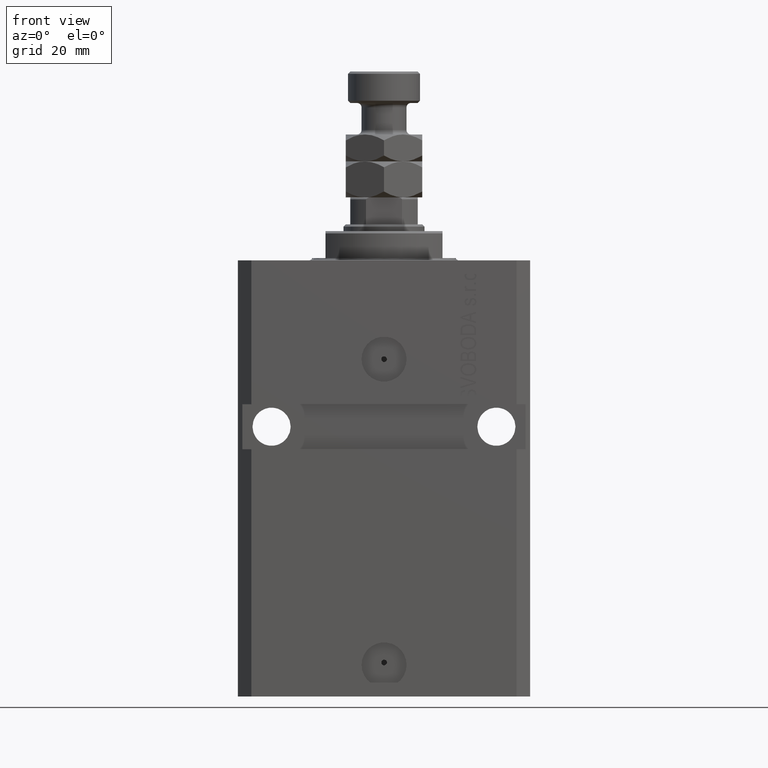
[diagram: clean part render]
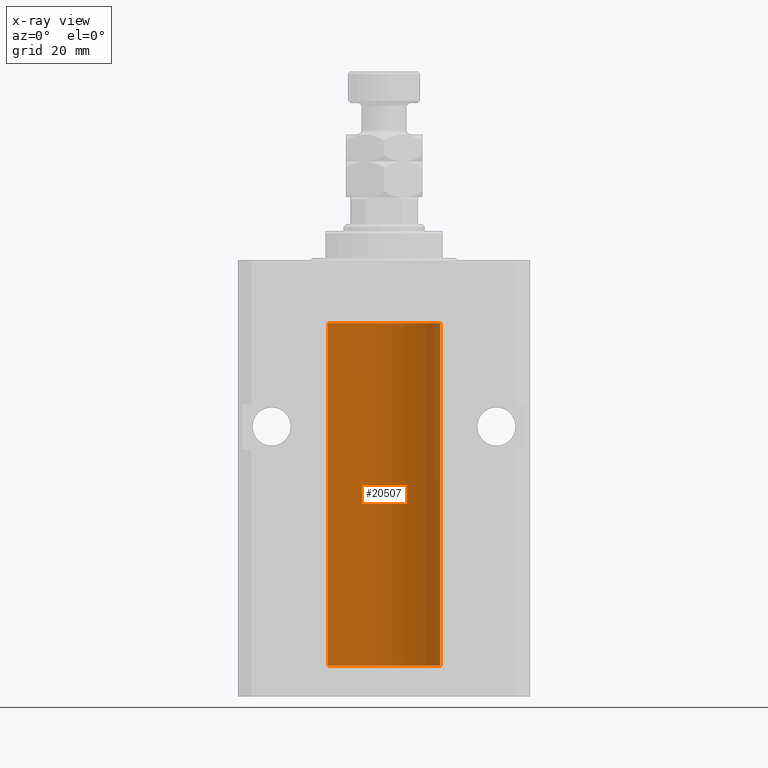
[diagram: x-ray — body ghosted, one internal face saturated and labeled with its STEP entity id]
A machine part, front view, then the same camera in x-ray: the body is ghosted and one INTERNAL B-rep face — a face not visible from any outside direction — is saturated and labeled: STEP entity #20507.
In plain terms, the highlighted cylindrical surface (partial cylindrical patch) has radius 12.5 mm, axis along (0, 0, 1).
Its self-contained STEP definition (entity closure, byte-faithful):
#272 = LINE ( 'NONE', #34811, #31202 ) ;
#604 = CARTESIAN_POINT ( 'NONE',  ( 0.000000000000000000, 0.000000000000000000, -90.09999999999999432 ) ) ;
#813 = AXIS2_PLACEMENT_3D ( 'NONE', #604, #38354, #26774 ) ;
#1006 = DIRECTION ( 'NONE',  ( -0.000000000000000000, -0.000000000000000000, 1.000000000000000000 ) ) ;
#1217 = LINE ( 'NONE', #23914, #3356 ) ;
#1822 = VERTEX_POINT ( 'NONE', #24395 ) ;
#2189 = CARTESIAN_POINT ( 'NONE',  ( -12.49631005746706336, 0.3253680783018528255, -22.55856740465392463 ) ) ;
#2422 = CARTESIAN_POINT ( 'NONE',  ( -12.48436813453758809, 0.6249418250771145988, -84.83668996798925832 ) ) ;
#2680 = CARTESIAN_POINT ( 'NONE',  ( -12.50000000000000000, -2.089494013101375120E-17, -21.37499999999999645 ) ) ;
#2868 = ORIENTED_EDGE ( 'NONE', *, *, #33053, .F. ) ;
#2871 = EDGE_CURVE ( 'NONE', #5726, #42181, #19849, .T. ) ;
#3356 = VECTOR ( 'NONE', #12071, 1000.000000000000000 ) ;
#3783 = CARTESIAN_POINT ( 'NONE',  ( -12.50000000000000000, -1.400179267190960761E-14, -84.37500000000000000 ) ) ;
#5131 = CARTESIAN_POINT ( 'NONE',  ( -12.50000000000000000, 1.530808498934191521E-15, -90.09999999999999432 ) ) ;
#5650 = CARTESIAN_POINT ( 'NONE',  ( -12.50000000000000000, 0.08260426088729219685, -21.37500000000000000 ) ) ;
#5726 = VERTEX_POINT ( 'NONE', #3783 ) ;
#5992 = EDGE_CURVE ( 'NONE', #35705, #45217, #22768, .T. ) ;
#6125 = CARTESIAN_POINT ( 'NONE',  ( -12.49999999999999467, 0.1631761135151226227, -85.62499999999985789 ) ) ;
#6140 = CARTESIAN_POINT ( 'NONE',  ( 12.50000000000000000, 0.000000000000000000, -13.99999999999999822 ) ) ;
#6850 = CARTESIAN_POINT ( 'NONE',  ( -12.49011732893843352, 0.5003763274120212046, -85.38348111289285214 ) ) ;
#7489 = LINE ( 'NONE', #44519, #20579 ) ;
#9336 = CARTESIAN_POINT ( 'NONE',  ( -12.50000000000017941, 3.883381774819353300E-13, -85.62500000000359535 ) ) ;
#10063 = CARTESIAN_POINT ( 'NONE',  ( -12.48436376893640265, 0.6250290278979885317, -85.08132082824472775 ) ) ;
#12071 = DIRECTION ( 'NONE',  ( -0.000000000000000000, -0.000000000000000000, 1.000000000000000000 ) ) ;
#12106 = DIRECTION ( 'NONE',  ( 0.000000000000000000, 0.000000000000000000, 1.000000000000000000 ) ) ;
#12491 = EDGE_LOOP ( 'NONE', ( #34184, #45035, #35317, #13217, #34327, #13821, #2868, #29522 ) ) ;
#13217 = ORIENTED_EDGE ( 'NONE', *, *, #5992, .T. ) ;
#13821 = ORIENTED_EDGE ( 'NONE', *, *, #48045, .T. ) ;
#13822 = EDGE_CURVE ( 'NONE', #1822, #42181, #7489, .T. ) ;
#16016 = CARTESIAN_POINT ( 'NONE',  ( -12.50000000000017941, 3.883381646606358354E-13, -22.62500000000358824 ) ) ;
#16023 = CARTESIAN_POINT ( 'NONE',  ( 12.50000000000000000, 0.000000000000000000, -90.09999999999999432 ) ) ;
#16990 = CARTESIAN_POINT ( 'NONE',  ( -12.48436376893640443, 0.6250290278979917513, -22.08132082824473486 ) ) ;
#17477 = CARTESIAN_POINT ( 'NONE',  ( -12.48520330846397819, 0.6088355886774127201, -22.16325431852561323 ) ) ;
#17721 = CARTESIAN_POINT ( 'NONE',  ( -12.48809959379011048, 0.5462151254764935349, -85.31461370481615347 ) ) ;
#19056 = VERTEX_POINT ( 'NONE', #38205 ) ;
#19849 = B_SPLINE_CURVE_WITH_KNOTS ( 'NONE', 3,
 ( #39935, #21415, #36243, #22137, #29080, #32792, #2422, #10063, #40669, #17721, #6850, #40180, #6125, #40428 ),
 .UNSPECIFIED., .F., .F.,
 ( 4, 2, 2, 2, 2, 2, 4 ),
 ( 3.490959302723760120E-18, 0.0002442924852391118698, 0.0004885849704782202702, 0.0009771699409564077975, 0.001221462426195501832, 0.001465754911434595433, 0.001954339881912782635 ),
 .UNSPECIFIED. ) ;
#20183 = LINE ( 'NONE', #5131, #40737 ) ;
#20507 = ADVANCED_FACE ( 'NONE', ( #25045 ), #40097, .F. ) ;
#20579 = VECTOR ( 'NONE', #25762, 1000.000000000000000 ) ;
#21095 = DIRECTION ( 'NONE',  ( 1.000000000000000000, 0.000000000000000000, 0.000000000000000000 ) ) ;
#21181 = CARTESIAN_POINT ( 'NONE',  ( -12.50000000000017941, 3.883381646606358354E-13, -22.62500000000358824 ) ) ;
#21415 = CARTESIAN_POINT ( 'NONE',  ( -12.50000000000000178, 0.08260426088728120564, -84.37500000000000000 ) ) ;
#21665 = CARTESIAN_POINT ( 'NONE',  ( -12.49915784441386890, 0.1636601911727947889, -21.39126818989430490 ) ) ;
#21730 = CARTESIAN_POINT ( 'NONE',  ( -12.50000000000000000, 1.530808498934191521E-15, -13.99999999999999822 ) ) ;
#21871 = EDGE_CURVE ( 'NONE', #48015, #35705, #1217, .T. ) ;
#22137 = CARTESIAN_POINT ( 'NONE',  ( -12.49625855304194211, 0.3150454781038009022, -84.45402800297485157 ) ) ;
#22768 = CIRCLE ( 'NONE', #29088, 12.50000000000000000 ) ;
#23914 = CARTESIAN_POINT ( 'NONE',  ( 12.50000000000000000, 0.000000000000000000, -90.09999999999999432 ) ) ;
#24395 = CARTESIAN_POINT ( 'NONE',  ( -12.50000000000000000, 1.530808498934191521E-15, -90.09999999999999432 ) ) ;
#24802 = CARTESIAN_POINT ( 'NONE',  ( 0.000000000000000000, 0.000000000000000000, -90.09999999999999432 ) ) ;
#25045 = FACE_OUTER_BOUND ( 'NONE', #12491, .T. ) ;
#25762 = DIRECTION ( 'NONE',  ( -0.000000000000000000, -0.000000000000000000, 1.000000000000000000 ) ) ;
#26774 = DIRECTION ( 'NONE',  ( 1.000000000000000000, 0.000000000000000000, 0.000000000000000000 ) ) ;
#28877 = B_SPLINE_CURVE_WITH_KNOTS ( 'NONE', 3,
 ( #2680, #5650, #21665, #43646, #36728, #48089, #39456, #16990, #17477, #44131, #33037, #2189, #35769, #21181 ),
 .UNSPECIFIED., .F., .F.,
 ( 4, 2, 2, 2, 2, 2, 4 ),
 ( 2.030551168097110502E-20, 0.0002442924852390969078, 0.0004885849704781938157, 0.0009771699409563880650, 0.001221462426195485135, 0.001465754911434582423, 0.001954339881912776130 ),
 .UNSPECIFIED. ) ;
#29080 = CARTESIAN_POINT ( 'NONE',  ( -12.49422197749724006, 0.3843754434364270445, -84.50047099568094211 ) ) ;
#29088 = AXIS2_PLACEMENT_3D ( 'NONE', #45934, #12106, #42219 ) ;
#29522 = ORIENTED_EDGE ( 'NONE', *, *, #2871, .T. ) ;
#31202 = VECTOR ( 'NONE', #1006, 1000.000000000000000 ) ;
#31579 = CIRCLE ( 'NONE', #813, 12.50000000000000000 ) ;
#32711 = DIRECTION ( 'NONE',  ( -0.000000000000000000, -0.000000000000000000, 1.000000000000000000 ) ) ;
#32792 = CARTESIAN_POINT ( 'NONE',  ( -12.48810268015257385, 0.5573155909661255958, -84.67347410093866245 ) ) ;
#33037 = CARTESIAN_POINT ( 'NONE',  ( -12.49011732893843529, 0.5003763274120274218, -22.38348111289287701 ) ) ;
#33053 = EDGE_CURVE ( 'NONE', #5726, #42067, #272, .T. ) ;
#34184 = ORIENTED_EDGE ( 'NONE', *, *, #13822, .F. ) ;
#34327 = ORIENTED_EDGE ( 'NONE', *, *, #34392, .F. ) ;
#34392 = EDGE_CURVE ( 'NONE', #19056, #45217, #20183, .T. ) ;
#34811 = CARTESIAN_POINT ( 'NONE',  ( -12.50000000000000000, 1.530808498934191521E-15, -90.09999999999999432 ) ) ;
#35317 = ORIENTED_EDGE ( 'NONE', *, *, #21871, .T. ) ;
#35705 = VERTEX_POINT ( 'NONE', #6140 ) ;
#35769 = CARTESIAN_POINT ( 'NONE',  ( -12.49999999999999289, 0.1631761135151241215, -22.62499999999984013 ) ) ;
#36243 = CARTESIAN_POINT ( 'NONE',  ( -12.49915784441387245, 0.1636601911727907643, -84.39126818989433332 ) ) ;
#36728 = CARTESIAN_POINT ( 'NONE',  ( -12.49422197749724006, 0.3843754434364375916, -21.50047099568095277 ) ) ;
#38205 = CARTESIAN_POINT ( 'NONE',  ( -12.50000000000000000, -2.089494013101375120E-17, -21.37499999999999645 ) ) ;
#38354 = DIRECTION ( 'NONE',  ( 0.000000000000000000, 0.000000000000000000, 1.000000000000000000 ) ) ;
#39456 = CARTESIAN_POINT ( 'NONE',  ( -12.48436813453758454, 0.6249418250771192618, -21.83668996798922635 ) ) ;
#39935 = CARTESIAN_POINT ( 'NONE',  ( -12.50000000000000000, -1.400179267190960761E-14, -84.37500000000000000 ) ) ;
#40097 = CYLINDRICAL_SURFACE ( 'NONE', #45073, 12.50000000000000000 ) ;
#40180 = CARTESIAN_POINT ( 'NONE',  ( -12.49631005746706336, 0.3253680783018467748, -85.55856740465395660 ) ) ;
#40428 = CARTESIAN_POINT ( 'NONE',  ( -12.50000000000017941, 3.883381774819353300E-13, -85.62500000000359535 ) ) ;
#40669 = CARTESIAN_POINT ( 'NONE',  ( -12.48520330846398174, 0.6088355886774080572, -85.16325431852563099 ) ) ;
#40737 = VECTOR ( 'NONE', #43139, 1000.000000000000000 ) ;
#42067 = VERTEX_POINT ( 'NONE', #16016 ) ;
#42181 = VERTEX_POINT ( 'NONE', #9336 ) ;
#42219 = DIRECTION ( 'NONE',  ( 1.000000000000000000, 0.000000000000000000, 0.000000000000000000 ) ) ;
#42707 = EDGE_CURVE ( 'NONE', #48015, #1822, #31579, .T. ) ;
#43139 = DIRECTION ( 'NONE',  ( -0.000000000000000000, -0.000000000000000000, 1.000000000000000000 ) ) ;
#43646 = CARTESIAN_POINT ( 'NONE',  ( -12.49625855304193678, 0.3150454781038042329, -21.45402800297484802 ) ) ;
#44131 = CARTESIAN_POINT ( 'NONE',  ( -12.48809959379011403, 0.5462151254764975317, -22.31461370481611795 ) ) ;
#44519 = CARTESIAN_POINT ( 'NONE',  ( -12.50000000000000000, 1.530808498934191521E-15, -90.09999999999999432 ) ) ;
#45035 = ORIENTED_EDGE ( 'NONE', *, *, #42707, .F. ) ;
#45073 = AXIS2_PLACEMENT_3D ( 'NONE', #24802, #32711, #21095 ) ;
#45217 = VERTEX_POINT ( 'NONE', #21730 ) ;
#45934 = CARTESIAN_POINT ( 'NONE',  ( 0.000000000000000000, 0.000000000000000000, -13.99999999999999822 ) ) ;
#48015 = VERTEX_POINT ( 'NONE', #16023 ) ;
#48045 = EDGE_CURVE ( 'NONE', #19056, #42067, #28877, .T. ) ;
#48089 = CARTESIAN_POINT ( 'NONE',  ( -12.48810268015257563, 0.5573155909661349217, -21.67347410093867666 ) ) ;